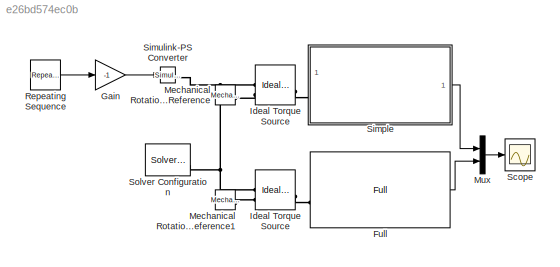
MODEL slx_e26bd574ec0b
KIND model
CONFIG AbsTol = 1e-4
CONFIG EnableMultiTasking = on
CONFIG PostLoadFcn = warning off Simulink:Engine:SaveWithDisabledLinks_Warning\nwarning off Simulink:Engine:UsingDefaultMaxStepSize\n
CONFIG SolverName = ode23t
CONFIG StopTime = 400
BLOCK [Reference] Full  REF=DCT_Vehicle_Dynamics_Lib/Full
  SourceBlock = DCT_Vehicle_Dynamics_Lib/Full
BLOCK [Gain] Gain
  Gain = -1
BLOCK [Reference] Ideal Torque Source  REF=fl_lib/Mechanical/Mechanical Sources/Ideal Torque Source
  SourceBlock = fl_lib/Mechanical/Mechanical Sources/Ideal Torque Source
  SourceType = Ideal Torque Source
BLOCK [Reference] Ideal Torque Source   REF=fl_lib/Mechanical/Mechanical Sources/Ideal Torque Source
  SourceBlock = fl_lib/Mechanical/Mechanical Sources/Ideal Torque Source
  SourceType = Ideal Torque Source
BLOCK [Reference] Mechanical Rotational Reference  REF=fl_lib/Mechanical/Rotational Elements/Mechanical
Rotational Reference
  SourceBlock = fl_lib/Mechanical/Rotational Elements/Mechanical\nRotational Reference
  SourceType = Mechanical\nRotational Reference
BLOCK [Reference] Mechanical Rotational Reference1  REF=fl_lib/Mechanical/Rotational Elements/Mechanical
Rotational Reference
  SourceBlock = fl_lib/Mechanical/Rotational Elements/Mechanical\nRotational Reference
  SourceType = Mechanical\nRotational Reference
BLOCK [Mux] Mux
  DisplayOption = bar
  Inputs = 2
BLOCK [Reference] Repeating Sequence  REF=simulink/Sources/Repeating
Sequence
  SourceBlock = simulink/Sources/Repeating\nSequence
  SourceType = Repeating table
BLOCK [Scope] Scope
  ActiveDisplayYMaximum = 109.27138
  ActiveDisplayYMinimum = -12.14127
  DataLoggingDecimation = 1
  DataLoggingSaveFormat = Structure With Time
  Floating = off
  GraphicalSettings = {"GraphicalSettings":{"LegacySettings":true,"Style":{"AxesScalingProperties":{"ScaleAxesLimitsAtStop":false},"Style":{"AxesColor":"[0 0 0]","BackgroundColor":"[0.501960784313725 0.501960784313725 0.501960784313725]","ChannelNames":[""],"ColorOrder":"[1 0.909803921568627 0.392156862745098;0.149019607843137 0.549019607843137 0.866666666666667;0.96078431372549 0.466666666666667 0.16078431372549;0.286...<+668ch>
  MultipleDisplayCache = [{"MaxYLimMag":109.27138,"MaxYLimReal":109.27138,"MinYLimMag":0,"MinYLimReal":-12.14127,"PlotAsMagnitudePhase":false,"ShowGrid":true,"ShowLegend":false,"Title":"%<SignalLabel>","YLabel":""}]
  NumInputPorts = 1
  TimeSpan = 400
  WasSavedAsWebScope = on
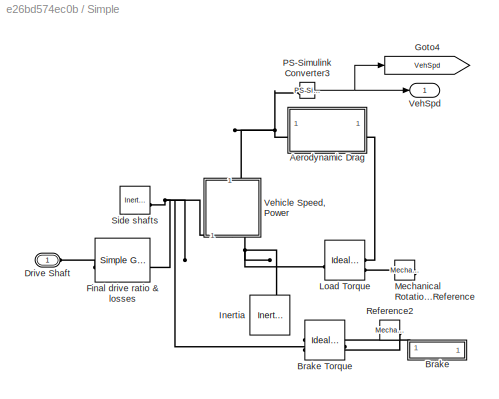
BLOCK [SubSystem] Simple
  AncestorBlock = DCT_Vehicle_Dynamics_Lib/Simple
  LibrarySourceBlock = DCT_Vehicle_Dynamics_Lib/Simple
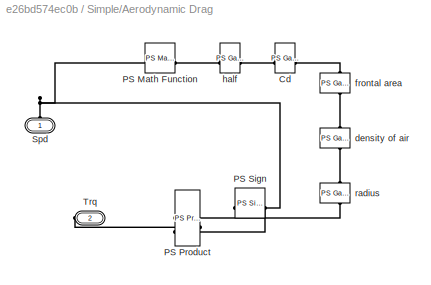
BLOCK [SubSystem] Simple/Aerodynamic Drag
BLOCK [Reference] Simple/Aerodynamic Drag/Cd  REF=fl_lib/Physical Signals/Functions/PS Gain
  SourceBlock = fl_lib/Physical Signals/Functions/PS Gain
  SourceType = PS Gain
BLOCK [Reference] Simple/Aerodynamic Drag/PS Math Function  REF=fl_lib/Physical Signals/Functions/PS Math Function
  SourceBlock = fl_lib/Physical Signals/Functions/PS Math Function
  SourceType = PS Math Function
BLOCK [Reference] Simple/Aerodynamic Drag/PS Product  REF=fl_lib/Physical Signals/Functions/PS Product
  NameLocation = top
  SourceBlock = fl_lib/Physical Signals/Functions/PS Product
  SourceType = PS Product
BLOCK [Reference] Simple/Aerodynamic Drag/PS Sign  REF=fl_lib/Physical Signals/Nonlinear Operators/PS Sign
  NameLocation = top
  SourceBlock = fl_lib/Physical Signals/Nonlinear Operators/PS Sign
  SourceType = PS Sign
BLOCK [PMIOPort] Simple/Aerodynamic Drag/Spd
  NameLocation = right
  Side = Left
BLOCK [PMIOPort] Simple/Aerodynamic Drag/Trq
  Port = 2
  Side = Right
BLOCK [Reference] Simple/Aerodynamic Drag/density of air  REF=fl_lib/Physical Signals/Functions/PS Gain
  NameLocation = right
  SourceBlock = fl_lib/Physical Signals/Functions/PS Gain
  SourceType = PS Gain
BLOCK [Reference] Simple/Aerodynamic Drag/frontal area  REF=fl_lib/Physical Signals/Functions/PS Gain
  NameLocation = right
  SourceBlock = fl_lib/Physical Signals/Functions/PS Gain
  SourceType = PS Gain
BLOCK [Reference] Simple/Aerodynamic Drag/half  REF=fl_lib/Physical Signals/Functions/PS Gain
  SourceBlock = fl_lib/Physical Signals/Functions/PS Gain
  SourceType = PS Gain
BLOCK [Reference] Simple/Aerodynamic Drag/radius  REF=fl_lib/Physical Signals/Functions/PS Gain
  NameLocation = right
  SourceBlock = fl_lib/Physical Signals/Functions/PS Gain
  SourceType = PS Gain
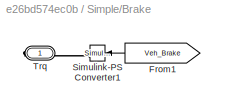
BLOCK [SubSystem] Simple/Brake
BLOCK [Reference] Simple/Brake Torque  REF=fl_lib/Mechanical/Mechanical Sources/Ideal Torque Source
  SourceBlock = fl_lib/Mechanical/Mechanical Sources/Ideal Torque Source
  SourceType = Ideal Torque Source
BLOCK [From] Simple/Brake/From1
  GotoTag = Veh_Brake
  NameLocation = top
BLOCK [Reference] Simple/Brake/Simulink-PS Converter1  REF=nesl_utility/Simulink-PS
Converter
  SourceBlock = nesl_utility/Simulink-PS\nConverter
  SourceType = Simulink-PS\nConverter
BLOCK [PMIOPort] Simple/Brake/Trq
  Side = Right
BLOCK [PMIOPort] Simple/Drive Shaft
  Side = Left
BLOCK [Reference] Simple/Final drive ratio & losses  REF=sdl_lib/Gears/Simple Gear
  SourceBlock = sdl_lib/Gears/Simple Gear
  SourceType = Simple Gear
BLOCK [Goto] Simple/Goto4
  Commented = on
  GotoTag = VehSpd
  TagVisibility = global
BLOCK [Reference] Simple/Inertia  REF=fl_lib/Mechanical/Rotational Elements/Inertia
  NameLocation = left
  SourceBlock = fl_lib/Mechanical/Rotational Elements/Inertia
  SourceType = Inertia
BLOCK [Reference] Simple/Load Torque  REF=fl_lib/Mechanical/Mechanical Sources/Ideal Torque Source
  SourceBlock = fl_lib/Mechanical/Mechanical Sources/Ideal Torque Source
  SourceType = Ideal Torque Source
BLOCK [Reference] Simple/Mechanical Rotational Reference  REF=fl_lib/Mechanical/Rotational Elements/Mechanical
Rotational Reference
  NameLocation = top
  SourceBlock = fl_lib/Mechanical/Rotational Elements/Mechanical\nRotational Reference
  SourceType = Mechanical\nRotational Reference
BLOCK [Reference] Simple/PS-Simulink Converter3  REF=nesl_utility/PS-Simulink
Converter
  SourceBlock = nesl_utility/PS-Simulink\nConverter
  SourceType = PS-Simulink\nConverter
BLOCK [Reference] Simple/Reference2  REF=fl_lib/Mechanical/Rotational Elements/Mechanical
Rotational Reference
  NameLocation = top
  SourceBlock = fl_lib/Mechanical/Rotational Elements/Mechanical\nRotational Reference
  SourceType = Mechanical\nRotational Reference
BLOCK [Reference] Simple/Side shafts  REF=fl_lib/Mechanical/Rotational Elements/Inertia
  NameLocation = top
  SourceBlock = fl_lib/Mechanical/Rotational Elements/Inertia
  SourceType = Inertia
BLOCK [Outport] Simple/VehSpd
  VectorParamsAs1DForOutWhenUnconnected = off
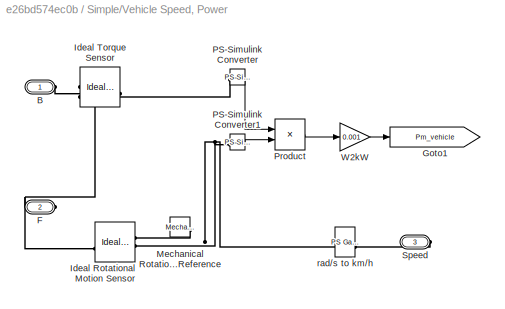
BLOCK [SubSystem] Simple/Vehicle Speed, Power
  NameLocation = right
BLOCK [PMIOPort] Simple/Vehicle Speed, Power/B
  NameLocation = top
  Side = Left
BLOCK [PMIOPort] Simple/Vehicle Speed, Power/F
  NameLocation = top
  Port = 2
  Side = Left
BLOCK [Goto] Simple/Vehicle Speed, Power/Goto1
  Commented = on
  GotoTag = Pm_vehicle
  TagVisibility = global
BLOCK [Reference] Simple/Vehicle Speed, Power/Ideal Rotational Motion Sensor  REF=fl_lib/Mechanical/Mechanical Sensors/Ideal Rotational
Motion Sensor
  SourceBlock = fl_lib/Mechanical/Mechanical Sensors/Ideal Rotational\nMotion Sensor
  SourceType = Ideal Rotational\nMotion Sensor
BLOCK [Reference] Simple/Vehicle Speed, Power/Ideal Torque Sensor  REF=fl_lib/Mechanical/Mechanical Sensors/Ideal Torque Sensor
  SourceBlock = fl_lib/Mechanical/Mechanical Sensors/Ideal Torque Sensor
  SourceType = Ideal Torque Sensor
BLOCK [Reference] Simple/Vehicle Speed, Power/Mechanical Rotational Reference  REF=fl_lib/Mechanical/Rotational Elements/Mechanical
Rotational Reference
  NameLocation = top
  SourceBlock = fl_lib/Mechanical/Rotational Elements/Mechanical\nRotational Reference
  SourceType = Mechanical\nRotational Reference
BLOCK [Reference] Simple/Vehicle Speed, Power/PS-Simulink Converter  REF=nesl_utility/PS-Simulink
Converter
  SourceBlock = nesl_utility/PS-Simulink\nConverter
  SourceType = PS-Simulink\nConverter
BLOCK [Reference] Simple/Vehicle Speed, Power/PS-Simulink Converter1  REF=nesl_utility/PS-Simulink
Converter
  SourceBlock = nesl_utility/PS-Simulink\nConverter
  SourceType = PS-Simulink\nConverter
BLOCK [Product] Simple/Vehicle Speed, Power/Product
  RndMeth = Zero
BLOCK [PMIOPort] Simple/Vehicle Speed, Power/Speed
  Port = 3
  Side = Right
BLOCK [Gain] Simple/Vehicle Speed, Power/W2kW
  Gain = 0.001
BLOCK [Reference] Simple/Vehicle Speed, Power/rad//s to km//h  REF=fl_lib/Physical Signals/Functions/PS Gain
  SourceBlock = fl_lib/Physical Signals/Functions/PS Gain
  SourceType = PS Gain
BLOCK [Reference] Simulink-PS Converter  REF=nesl_utility/Simulink-PS
Converter
  SourceBlock = nesl_utility/Simulink-PS\nConverter
  SourceType = Simulink-PS\nConverter
BLOCK [Reference] Solver Configuration  REF=nesl_utility/Solver
Configuration
  SourceBlock = nesl_utility/Solver\nConfiguration
  SourceType = Solver\nConfiguration
LINE Full:1 -> Mux:2
LINE Gain:1 -> Simulink-PS Converter:1
LINE Mux:1 -> Scope:1
LINE Repeating Sequence:1 -> Gain:1
LINE Simple:1 -> Mux:1
PLINE Full:LConn1 -- Ideal Torque Source :LConn1
PNET net1: Ideal Torque Source :RConn1 -- Ideal Torque Source:RConn1 -- Simulink-PS Converter:RConn1 -- Solver Configuration:RConn1
PLINE Ideal Torque Source :RConn2 -- Mechanical Rotational Reference1:LConn1
PLINE Ideal Torque Source:LConn1 -- Simple:LConn1
PLINE Ideal Torque Source:RConn2 -- Mechanical Rotational Reference:LConn1
note: PNET lines group multi-terminal physical nets as a canonical sorted terminal list (undirected conserving connections); 2-terminal nets keep the pairwise PLINE form
